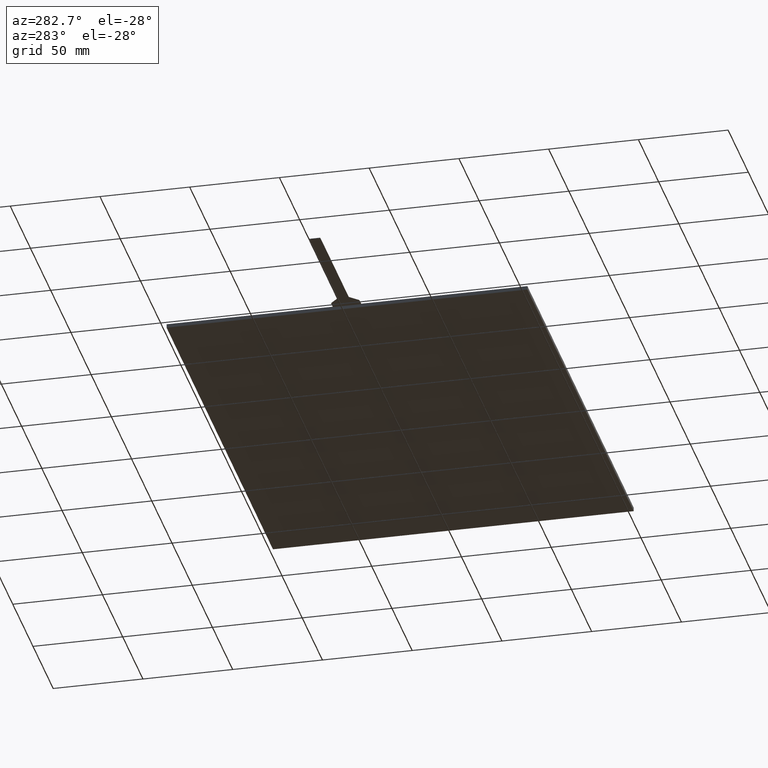
[diagram: clean part render]
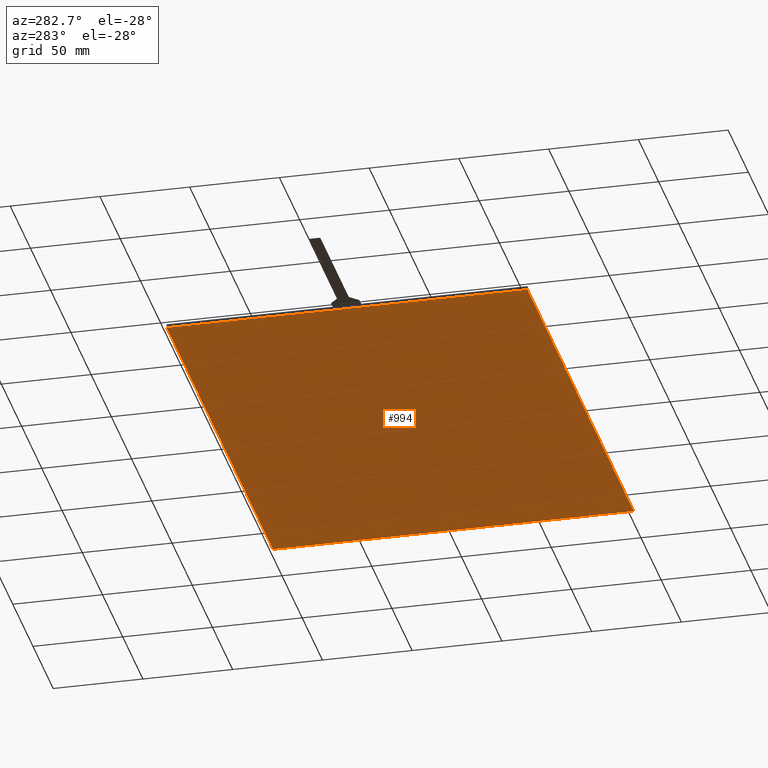
[diagram: same view with one face highlighted and labeled with its STEP entity id]
A machine part, auxiliary view. The second image highlights one B-rep face of the part: STEP entity #994.
In plain terms, the highlighted planar face has unit normal (0, 0, -1).
Its self-contained STEP definition (entity closure, byte-faithful):
#62=PLANE('',#1077);
#113=FACE_OUTER_BOUND('',#167,.T.);
#167=EDGE_LOOP('',(#934,#935,#936,#937));
#287=LINE('',#1600,#413);
#289=LINE('',#1604,#415);
#291=LINE('',#1608,#417);
#293=LINE('',#1611,#419);
#413=VECTOR('',#1315,10.);
#415=VECTOR('',#1319,10.);
#417=VECTOR('',#1323,10.);
#419=VECTOR('',#1327,10.);
#520=VERTEX_POINT('',#1597);
#521=VERTEX_POINT('',#1599);
#522=VERTEX_POINT('',#1603);
#523=VERTEX_POINT('',#1607);
#655=EDGE_CURVE('',#521,#520,#287,.T.);
#657=EDGE_CURVE('',#522,#521,#289,.T.);
#659=EDGE_CURVE('',#523,#522,#291,.T.);
#661=EDGE_CURVE('',#520,#523,#293,.T.);
#934=ORIENTED_EDGE('',*,*,#661,.T.);
#935=ORIENTED_EDGE('',*,*,#659,.T.);
#936=ORIENTED_EDGE('',*,*,#657,.T.);
#937=ORIENTED_EDGE('',*,*,#655,.T.);
#994=ADVANCED_FACE('',(#113),#62,.T.);
#1077=AXIS2_PLACEMENT_3D('',#1613,#1330,#1331);
#1315=DIRECTION('',(-1.76751924318433E-16,1.,0.));
#1319=DIRECTION('',(-1.,-6.75420851482985E-17,0.));
#1323=DIRECTION('',(8.83759621592164E-17,-1.,0.));
#1327=DIRECTION('',(1.,0.,0.));
#1330=DIRECTION('center_axis',(0.,0.,-1.));
#1331=DIRECTION('ref_axis',(-1.,0.,0.));
#1597=CARTESIAN_POINT('',(-133.,100.5,-2.1));
#1599=CARTESIAN_POINT('',(-133.,-100.5,-2.1));
#1600=CARTESIAN_POINT('',(-133.,100.5,-2.1));
#1603=CARTESIAN_POINT('',(130.,-100.5,-2.1));
#1604=CARTESIAN_POINT('',(-133.,-100.5,-2.1));
#1607=CARTESIAN_POINT('',(130.,100.5,-2.1));
#1608=CARTESIAN_POINT('',(130.,-100.5,-2.1));
#1611=CARTESIAN_POINT('',(130.,100.5,-2.1));
#1613=CARTESIAN_POINT('Origin',(-1.50000000000002,1.77635683940025E-14,
-2.1));